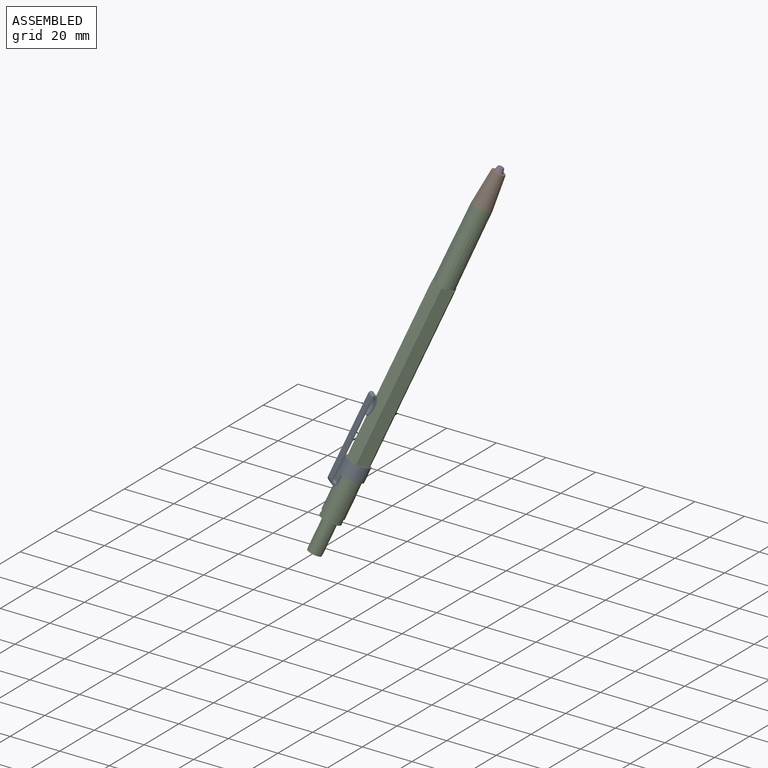
[diagram: assembled view]
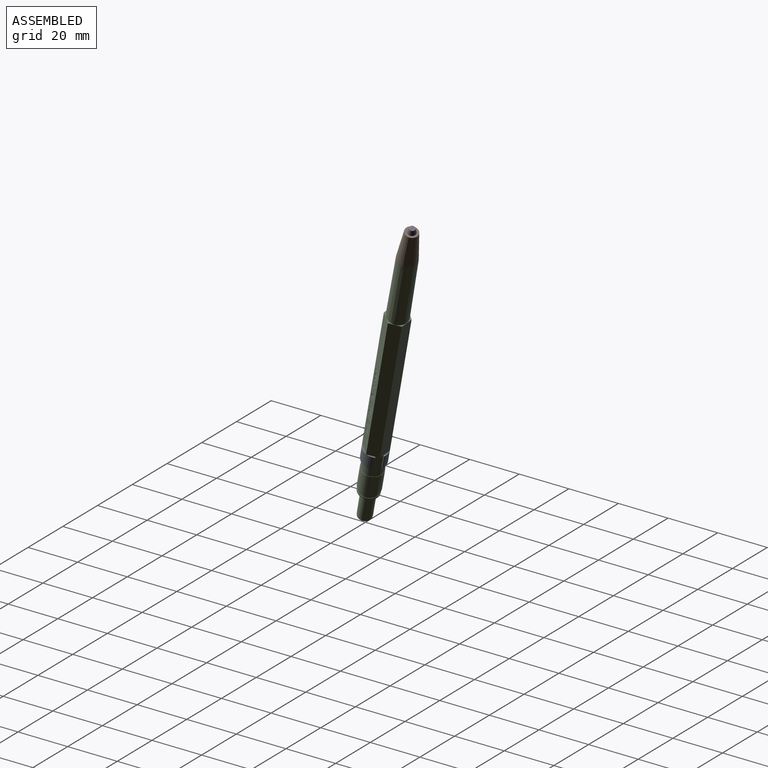
[diagram: assembled view, second angle]
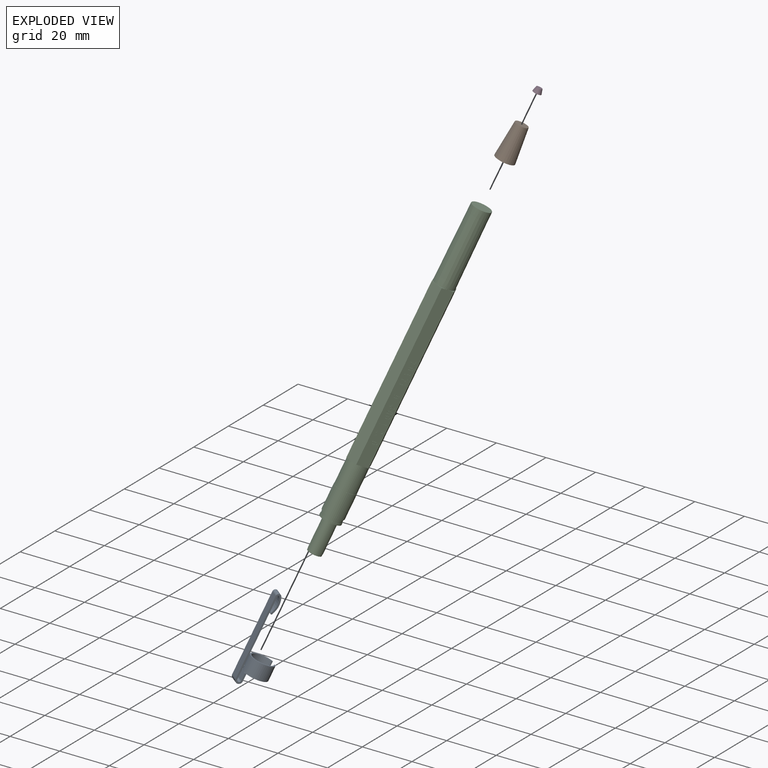
[diagram: exploded view]
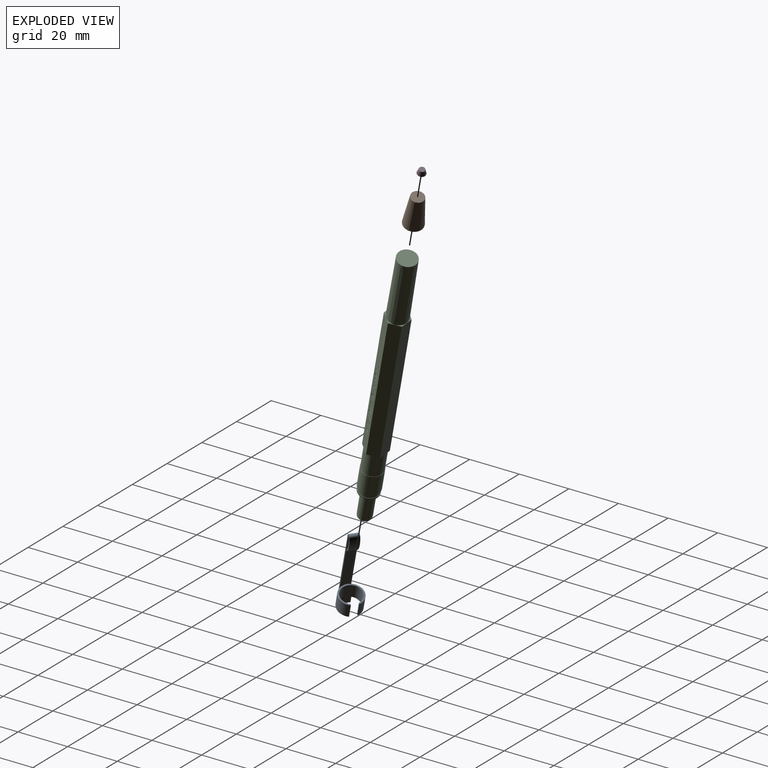
[diagram: exploded view, second angle]
ASSEMBLY  parts=4 mates=7
PART A: 26 faces, bbox 9.4x34.2x11.3 mm
  f0: plane 8.74x4.31mm, normal (0,1,0), area 6.6mm2, adj f1,f2,f6,f7,f8,f12,f25
  f1: cylinder r=0.15mm len=5.84mm, axis (0,1,0), area 1.7mm2, adj f0,f2,f8,f9
  f2: cylinder r=4.71mm len=9.42mm, axis (0,1,0), area 153.2mm2, adj f0,f1,f3,f9,f10,f13
  f3: cylinder r=0.15mm len=5.84mm, axis (0,1,0), area 1.7mm2, adj f2,f4,f9,f10
  f4: plane 5.84x0.33mm, normal (-1,0,0), area 1.9mm2, adj f3,f5,f9,f10
  f5: cylinder r=0.15mm len=5.84mm, axis (0,1,0), area 1mm2, adj f4,f6,f9,f10
  f6: cylinder r=4.1mm len=8.2mm, axis (0,1,0), area 132.1mm2, adj f0,f5,f7,f9,f10,f11
  f7: cylinder r=0.15mm len=5.84mm, axis (0,1,0), area 1mm2, adj f0,f6,f8,f9
  f8: plane 5.84x0.33mm, normal (1,0,0), area 1.9mm2, adj f0,f1,f7,f9
  f9: plane 9.42x9.13mm, normal (0,-1,0), area 15.1mm2, adj f1,f2,f3,f4,f5,f6,f7,f8
  f10: plane 8.74x4.31mm, normal (0,1,0), area 6.6mm2, adj f2,f3,f4,f5,f6,f12,f24
  f11: plane 0.81x0.02mm, normal (0,-1,0), area 0mm2, adj f6,f12
  f12: plane 3.75x2.79mm, normal (0,0,1), area 10.5mm2, adj f0,f10,f11,f23,f24,f25
  f13: plane 3.75x0.42mm, normal (0,-1,0), area 0.6mm2, adj f2,f14,f24,f25
  f14: plane 3.75x2.79mm, normal (0,0,-1), area 10.5mm2, adj f13,f15,f24,f25
  f15: cylinder r=0.75mm len=3.75mm, axis (-1,0,0), area 8.8mm2, adj f14,f16,f24,f25
  f16: plane 31.75x3.75mm, normal (0,0,1), area 119.1mm2, adj f15,f17,f24,f25
  f17: cylinder r=0.36mm len=3.75mm, axis (-1,0,0), area 3.6mm2, adj f16,f18,f24,f25
  f18: cylinder r=6.57mm len=6.27mm, axis (-1,0,0), area 24.5mm2, adj f17,f19,f24,f25
  f19: cylinder r=0.33mm len=3.75mm, axis (-1,0,0), area 4mm2, adj f18,f20,f24,f25
  f20: cylinder r=7.23mm len=6.9mm, axis (-1,0,0), area 27mm2, adj f19,f21,f24,f25
  f21: cylinder r=1.02mm len=3.75mm, axis (-1,0,0), area 10.2mm2, adj f20,f22,f24,f25
  f22: plane 31.75x3.75mm, normal (0,0,-1), area 119.1mm2, adj f21,f23,f24,f25
  f23: cylinder r=1.41mm len=3.75mm, axis (-1,0,0), area 16.5mm2, adj f12,f22,f24,f25
  f24: plane 34.16x2.82mm, normal (1,0,0), area 31mm2, adj f10,f12,f13,f14,f15,f16,f17,f18
  f25: plane 34.16x2.82mm, normal (-1,0,0), area 31mm2, adj f0,f12,f13,f14,f15,f16,f17,f18
PART B: 3 faces, bbox 7.6x7.6x13.5 mm
  f0: cone r=3.82mm half-angle=5.4deg, axis (0,0,1), area 270.2mm2, adj f1,f2
  f1: plane 5.09x5.09mm, normal (0,0,-1), area 20.3mm2, adj f0
  f2: plane 7.63x7.63mm, normal (0,0,1), area 45.8mm2, adj f0
PART C: 204 faces, bbox 9.5x8.5x132.3 mm
  f0: plane 67.56x4.12mm, normal (0.87,0.5,0), area 289.4mm2, adj f4,f9,f10,f11,f15,f19,f33,f34
  f1: plane 5.46x5.46mm, normal (0,0,1), area 1.4mm2, adj f30,f31
  f2: plane 8.1x8.1mm, normal (0,0,1), area 28.1mm2, adj f29,f30
  f3: plane 8.45x8.45mm, normal (0,0,1), area 7.7mm2, adj f26,f27
  f4: plane 3.13x1.81mm, normal (0,0,1), area 0.9mm2, adj f0,f11,f24
  f5: plane 3.13x1.81mm, normal (0,0,1), area 0.9mm2, adj f11,f12,f24
  f6: plane 3.62x1.04mm, normal (0,0,1), area 0.9mm2, adj f12,f13,f24
  f7: plane 3.13x1.81mm, normal (0,0,1), area 0.9mm2, adj f13,f14,f24
  f8: plane 3.13x1.81mm, normal (0,0,1), area 0.9mm2, adj f10,f14,f24
  f9: plane 9.5x8.23mm, normal (0,0,-1), area 7.1mm2, adj f0,f10,f11,f12,f13,f14,f16
  f10: plane 67.56x4.12mm, normal (0.87,-0.5,0), area 321mm2, adj f0,f8,f9,f14,f15,f18
  f11: plane 67.56x4.75mm, normal (0,1,0), area 321mm2, adj f0,f4,f5,f9,f12,f20
  f12: plane 67.56x4.12mm, normal (-0.87,0.5,0), area 321mm2, adj f5,f6,f9,f11,f13,f21
  f13: plane 67.56x4.12mm, normal (-0.87,-0.5,0), area 321mm2, adj f6,f7,f9,f12,f14,f22
  f14: plane 67.56x4.75mm, normal (0,-1,0), area 321mm2, adj f7,f8,f9,f10,f13,f23
  f15: plane 3.62x1.04mm, normal (0,0,1), area 0.9mm2, adj f0,f10,f24
  f16: cone r=4.05mm half-angle=0.5deg, axis (0,0,1), area 734mm2, adj f9,f17
  f17: plane 7.63x7.63mm, normal (0,0,-1), area 45.8mm2, adj f16
  f18: plane 0.5x0.29mm, normal (0,0,-1), area 0mm2, adj f10,f24
  f19: plane 0.5x0.29mm, normal (0,0,-1), area 0mm2, adj f0,f24
  f20: plane 0.57x0.01mm, normal (0,0,-1), area 0mm2, adj f11,f24
  f21: plane 0.5x0.29mm, normal (0,0,-1), area 0mm2, adj f12,f24
  f22: plane 0.5x0.29mm, normal (0,0,-1), area 0mm2, adj f13,f24
  f23: plane 0.57x0.01mm, normal (0,0,-1), area 0mm2, adj f14,f24
  f24: cylinder r=4.12mm len=10.35mm, axis (0,0,-1), area 268.3mm2, adj f4,f5,f6,f7,f8,f15,f18,f19
  f25: plane 8.45x8.45mm, normal (0,0,-1), area 2.6mm2, adj f24,f26
  f26: cylinder r=4.22mm len=9.8mm, axis (0,0,-1), area 260.2mm2, adj f3,f25
  f27: cylinder r=3.92mm len=7.85mm, axis (0,0,-1), area 35mm2, adj f3,f28
  f28: plane 8.1x8.1mm, normal (0,0,-1), area 3.1mm2, adj f27,f29
  f29: cylinder r=4.05mm len=8.1mm, axis (0,0,-1), area 19.1mm2, adj f2,f28
  f30: cylinder r=2.73mm len=11.92mm, axis (0,0,-1), area 204.5mm2, adj f1,f2
  f31: cylinder r=2.65mm len=5.3mm, axis (0,0,-1), area 12.5mm2, adj f1,f32
  f32: plane 5.3x5.3mm, normal (0,0,1), area 22.1mm2, adj f31
  f33: extruded ~0.83x0.78mm, area 0.1mm2, adj f0,f34,f38,f39
  f34: plane 0.75x0.49mm, normal (0,0,-1), area 0.1mm2, adj f0,f33,f35,f39
  f35: extruded ~0.81x0.74mm, area 0.1mm2, adj f0,f34,f36,f39
  f36: extruded ~0.78x0.78mm, area 0.1mm2, adj f0,f35,f37,f39
  f37: plane 0.79x0.51mm, normal (0,0,1), area 0.1mm2, adj f0,f36,f38,f39
  f38: extruded ~0.83x0.73mm, area 0.1mm2, adj f0,f33,f37,f39
  f39: plane 2.24x1.51mm, normal (0.87,0.5,0), area 3.3mm2, adj f33,f34,f35,f36,f37,f38,f40,f41
  f40: plane 1.09x0.69mm, normal (0,0,1), area 0.1mm2, adj f39,f41,f45,f46
  f41: extruded ~0.27x0.21mm, area 0mm2, adj f39,f40,f42,f46
  f42: extruded ~0.28x0.22mm, area 0mm2, adj f39,f41,f43,f46
  f43: plane 1.08x0.68mm, normal (0,0,-1), area 0.1mm2, adj f39,f42,f44,f46
  f44: extruded ~0.28x0.22mm, area 0mm2, adj f39,f43,f45,f46
  f45: extruded ~0.28x0.22mm, area 0mm2, adj f39,f40,f44,f46
  f46: plane 1.49x0.86mm, normal (0.87,0.5,0), area 0.2mm2, adj f40,f41,f42,f43,f44,f45
  f47: plane 0.49x0.09mm, normal (-0.5,0.87,0), area 0mm2, adj f0,f48,f53,f54
  f48: plane 0.26x0.21mm, normal (0,0,-1), area 0mm2, adj f0,f47,f49,f54
  f49: extruded ~0.57x0.49mm, area 0.1mm2, adj f0,f48,f50,f54
  f50: plane 0.24x0.2mm, normal (0,0,1), area 0mm2, adj f0,f49,f51,f54
  f51: extruded ~0.14x0.14mm, area 0mm2, adj f0,f50,f52,f54
  f52: plane 0.09x0.09mm, normal (0.5,-0.87,0), area 0mm2, adj f0,f51,f53,f54
  f53: plane 0.5x0.35mm, normal (0,0,1), area 0.1mm2, adj f0,f47,f52,f54
  f54: plane 0.73x0.49mm, normal (0.87,0.5,0), area 0.4mm2, adj f47,f48,f49,f50,f51,f52,f53
  f55: plane 0.65x0.09mm, normal (-0.5,0.87,0), area 0.1mm2, adj f0,f56,f67,f68
  f56: plane 0.45x0.32mm, normal (0,0,-1), area 0mm2, adj f0,f55,f57,f68
  f57: plane 1.4x0.09mm, normal (0.5,-0.87,0), area 0.1mm2, adj f0,f56,f58,f68
  f58: plane 0.39x0.28mm, normal (-0.01,0.02,1), area 0mm2, adj f0,f57,f59,f68
  f59: extruded ~1.38x0.86mm, area 0.2mm2, adj f0,f58,f60,f68
  f60: extruded ~0.19x0.17mm, area 0mm2, adj f0,f59,f61,f68
  f61: extruded ~0.26x0.21mm, area 0mm2, adj f0,f60,f62,f68
  f62: plane 0.27x0.22mm, normal (0,0,-1), area 0mm2, adj f0,f61,f63,f68
  f63: plane 0.61x0.09mm, normal (0.5,-0.87,0), area 0.1mm2, adj f0,f62,f64,f68
  f64: plane 0.15x0.15mm, normal (0,0,1), area 0mm2, adj f0,f63,f65,f68
  f65: extruded ~0.75x0.67mm, area 0.1mm2, adj f0,f64,f66,f68
  f66: extruded ~0.78x0.62mm, area 0.1mm2, adj f0,f65,f67,f68
  f67: extruded ~1.26x0.79mm, area 0.2mm2, adj f0,f55,f66,f68
  f68: plane 2.19x1.45mm, normal (0.87,0.5,0), area 2.6mm2, adj f55,f56,f57,f58,f59,f60,f61,f62
  f69: plane 2.57x1.54mm, normal (0,0,1), area 0.3mm2, adj f0,f70,f72,f73
  f70: plane 0.41x0.09mm, normal (-0.5,0.87,0), area 0mm2, adj f0,f69,f71,f73
  f71: plane 2.57x1.54mm, normal (0,0,-1), area 0.3mm2, adj f0,f70,f72,f73
  f72: plane 0.41x0.09mm, normal (0.5,-0.87,0), area 0mm2, adj f0,f69,f71,f73
  f73: plane 2.52x1.45mm, normal (0.87,0.5,0), area 1.2mm2, adj f69,f70,f71,f72
  f74: extruded ~0.83x0.78mm, area 0.1mm2, adj f0,f75,f79,f80
  f75: plane 0.75x0.49mm, normal (0,0,-1), area 0.1mm2, adj f0,f74,f76,f80
  f76: extruded ~0.81x0.74mm, area 0.1mm2, adj f0,f75,f77,f80
  f77: extruded ~0.78x0.78mm, area 0.1mm2, adj f0,f76,f78,f80
  f78: plane 0.79x0.51mm, normal (0,0,1), area 0.1mm2, adj f0,f77,f79,f80
  f79: extruded ~0.83x0.73mm, area 0.1mm2, adj f0,f74,f78,f80
  f80: plane 2.24x1.51mm, normal (0.87,0.5,0), area 3.3mm2, adj f74,f75,f76,f77,f78,f79,f81,f82
  f81: plane 1.09x0.69mm, normal (0,0,1), area 0.1mm2, adj f80,f82,f86,f87
  f82: extruded ~0.27x0.21mm, area 0mm2, adj f80,f81,f83,f87
  f83: extruded ~0.28x0.22mm, area 0mm2, adj f80,f82,f84,f87
  f84: plane 1.08x0.68mm, normal (0,0,-1), area 0.1mm2, adj f80,f83,f85,f87
  f85: extruded ~0.28x0.22mm, area 0mm2, adj f80,f84,f86,f87
  f86: extruded ~0.28x0.22mm, area 0mm2, adj f80,f81,f85,f87
  f87: plane 1.49x0.86mm, normal (0.87,0.5,0), area 0.2mm2, adj f81,f82,f83,f84,f85,f86
  f88: extruded ~0.83x0.78mm, area 0.1mm2, adj f0,f89,f93,f94
  f89: plane 0.75x0.49mm, normal (0,0,-1), area 0.1mm2, adj f0,f88,f90,f94
  f90: extruded ~0.81x0.74mm, area 0.1mm2, adj f0,f89,f91,f94
  f91: extruded ~0.78x0.78mm, area 0.1mm2, adj f0,f90,f92,f94
  f92: plane 0.79x0.51mm, normal (0,0,1), area 0.1mm2, adj f0,f91,f93,f94
  f93: extruded ~0.83x0.73mm, area 0.1mm2, adj f0,f88,f92,f94
  f94: plane 2.24x1.51mm, normal (0.87,0.5,0), area 3.3mm2, adj f88,f89,f90,f91,f92,f93,f95,f96
  f95: plane 1.09x0.69mm, normal (0,0,1), area 0.1mm2, adj f94,f96,f100,f101
  f96: extruded ~0.27x0.21mm, area 0mm2, adj f94,f95,f97,f101
  f97: extruded ~0.28x0.22mm, area 0mm2, adj f94,f96,f98,f101
  f98: plane 1.08x0.68mm, normal (0,0,-1), area 0.1mm2, adj f94,f97,f99,f101
  f99: extruded ~0.28x0.22mm, area 0mm2, adj f94,f98,f100,f101
  f100: extruded ~0.28x0.22mm, area 0mm2, adj f94,f95,f99,f101
  f101: plane 1.49x0.86mm, normal (0.87,0.5,0), area 0.2mm2, adj f95,f96,f97,f98,f99,f100
  f102: extruded ~0.45x0.32mm, area 0.1mm2, adj f0,f103,f122,f123
  f103: extruded ~0.61x0.41mm, area 0.1mm2, adj f0,f102,f104,f123
  f104: extruded ~0.77x0.74mm, area 0.1mm2, adj f0,f103,f105,f123
  f105: extruded ~0.79x0.75mm, area 0.1mm2, adj f0,f104,f106,f123
  f106: plane 0.24x0.2mm, normal (0,0,1), area 0mm2, adj f0,f105,f107,f123
  f107: plane 0.7x0.09mm, normal (-0.5,0.87,0), area 0.1mm2, adj f0,f106,f108,f123
  f108: plane 0.42x0.3mm, normal (0,0,-1), area 0mm2, adj f0,f107,f109,f123
  f109: extruded ~0.24x0.19mm, area 0mm2, adj f0,f108,f110,f123
  f110: extruded ~0.32x0.24mm, area 0mm2, adj f0,f109,f111,f123
  f111: plane 0.2x0.17mm, normal (0,0,1), area 0mm2, adj f0,f110,f112,f123
  f112: extruded ~0.35x0.29mm, area 0.1mm2, adj f0,f111,f113,f123
  f113: plane 0.4x0.29mm, normal (0,0,1), area 0mm2, adj f0,f112,f114,f123
  f114: extruded ~0.35x0.25mm, area 0.1mm2, adj f0,f113,f115,f123
  f115: plane 0.17x0.15mm, normal (0,0,1), area 0mm2, adj f0,f114,f116,f123
  f116: extruded ~0.21x0.18mm, area 0mm2, adj f0,f115,f117,f123
  f117: extruded ~0.23x0.19mm, area 0mm2, adj f0,f116,f118,f123
  f118: plane 0.25x0.2mm, normal (0,0,-1), area 0mm2, adj f0,f117,f119,f123
  f119: plane 0.7x0.09mm, normal (0.5,-0.87,0), area 0.1mm2, adj f0,f118,f120,f123
  f120: plane 0.26x0.21mm, normal (0,0,1), area 0mm2, adj f0,f119,f121,f123
  f121: extruded ~0.69x0.6mm, area 0.1mm2, adj f0,f120,f122,f123
  f122: extruded ~0.79x0.64mm, area 0.1mm2, adj f0,f102,f121,f123
  f123: plane 2.24x1.51mm, normal (0.87,0.5,0), area 3mm2, adj f102,f103,f104,f105,f106,f107,f108,f109
  f124: plane 0.66x0.09mm, normal (-0.5,0.87,0), area 0.1mm2, adj f0,f125,f137,f138
  f125: plane 1.41x0.87mm, normal (0,0,-1), area 0.2mm2, adj f0,f124,f126,f138
  f126: extruded ~0.82x0.78mm, area 0.1mm2, adj f0,f125,f127,f138
  f127: extruded ~0.69x0.53mm, area 0.1mm2, adj f0,f126,f128,f138
  f128: plane 0.67x0.09mm, normal (-0.5,0.87,0), area 0.1mm2, adj f0,f127,f129,f138
  f129: extruded ~0.18x0.16mm, area 0mm2, adj f0,f128,f130,f138
  f130: extruded ~0.22x0.18mm, area 0mm2, adj f0,f129,f131,f138
  f131: plane 0.16x0.15mm, normal (0,0,1), area 0mm2, adj f0,f130,f132,f138
  f132: extruded ~0.32x0.18mm, area 0mm2, adj f0,f131,f133,f138
  f133: extruded ~0.55x0.49mm, area 0.1mm2, adj f0,f132,f134,f138
  f134: plane 0.68x0.45mm, normal (0,0,1), area 0.1mm2, adj f0,f133,f135,f138
  f135: extruded ~0.54x0.46mm, area 0.1mm2, adj f0,f134,f136,f138
  f136: extruded ~0.37x0.21mm, area 0mm2, adj f0,f135,f137,f138
  f137: plane 0.19x0.17mm, normal (-0.06,0.1,0.99), area 0mm2, adj f0,f124,f136,f138
  f138: plane 2.11x1.51mm, normal (0.87,0.5,0), area 3.3mm2, adj f124,f125,f126,f127,f128,f129,f130,f131
  f139: plane 0.59x0.4mm, normal (0,0,1), area 0.1mm2, adj f138,f140,f144,f145
  f140: extruded ~0.26x0.21mm, area 0mm2, adj f138,f139,f141,f145
  f141: extruded ~0.21x0.18mm, area 0mm2, adj f138,f140,f142,f145
  f142: plane 0.64x0.42mm, normal (0,0,-1), area 0.1mm2, adj f138,f141,f143,f145
  f143: extruded ~0.21x0.18mm, area 0mm2, adj f138,f142,f144,f145
  f144: extruded ~0.21x0.18mm, area 0mm2, adj f138,f139,f143,f145
  f145: plane 0.91x0.52mm, normal (0.87,0.5,0), area 0.1mm2, adj f139,f140,f141,f142,f143,f144
  f146: plane 0.73x0.09mm, normal (-0.5,0.87,0), area 0.1mm2, adj f0,f147,f149,f150
  f147: plane 0.38x0.28mm, normal (0,0,-1), area 0mm2, adj f0,f146,f148,f150
  f148: plane 0.73x0.09mm, normal (0.5,-0.87,0), area 0.1mm2, adj f0,f147,f149,f150
  f149: plane 0.38x0.28mm, normal (0,0,1), area 0mm2, adj f0,f146,f148,f150
  f150: plane 0.73x0.33mm, normal (0.87,0.5,0), area 0.3mm2, adj f146,f147,f148,f149
  f151: plane 0.73x0.09mm, normal (-0.5,0.87,0), area 0.1mm2, adj f0,f152,f154,f155
  f152: plane 1.84x1.12mm, normal (0,0,-1), area 0.2mm2, adj f0,f151,f153,f155
  f153: plane 0.73x0.09mm, normal (0.5,-0.87,0), area 0.1mm2, adj f0,f152,f154,f155
  f154: plane 1.84x1.12mm, normal (0,0,1), area 0.2mm2, adj f0,f151,f153,f155
  f155: plane 1.79x1.03mm, normal (0.87,0.5,0), area 1.5mm2, adj f151,f152,f153,f154
  f156: plane 0.7x0.09mm, normal (-0.5,0.87,0), area 0.1mm2, adj f0,f157,f163,f164
  f157: plane 0.29x0.23mm, normal (0,0,-1), area 0mm2, adj f0,f156,f158,f164
  f158: extruded ~0.35x0.32mm, area 0.1mm2, adj f0,f157,f159,f164
  f159: plane 0.7x0.46mm, normal (0,0,-1), area 0.1mm2, adj f0,f158,f160,f164
  f160: extruded ~0.5x0.35mm, area 0.1mm2, adj f0,f159,f161,f164
  f161: plane 0.76x0.5mm, normal (0,0,-1), area 0.1mm2, adj f0,f160,f162,f164
  f162: plane 0.7x0.09mm, normal (0.5,-0.87,0), area 0.1mm2, adj f0,f161,f163,f164
  f163: plane 1.84x1.12mm, normal (0,0,1), area 0.2mm2, adj f0,f156,f162,f164
  f164: plane 1.81x1.05mm, normal (0.87,0.5,0), area 1.7mm2, adj f156,f157,f158,f159,f160,f161,f162,f163
  f165: plane 0.7x0.09mm, normal (-0.5,0.87,0), area 0.1mm2, adj f0,f166,f179,f180
  f166: plane 0.33x0.25mm, normal (0,0,-1), area 0mm2, adj f0,f165,f167,f180
  f167: plane 0.17x0.09mm, normal (-0.5,0.87,0), area 0mm2, adj f0,f166,f168,f180
  f168: plane 0.38x0.28mm, normal (0,0,-1), area 0mm2, adj f0,f167,f169,f180
  f169: plane 0.17x0.09mm, normal (0.5,-0.87,0), area 0mm2, adj f0,f168,f170,f180
  f170: plane 0.95x0.61mm, normal (0,0,-1), area 0.1mm2, adj f0,f169,f171,f180
  f171: extruded ~0.23x0.2mm, area 0mm2, adj f0,f170,f172,f180
  f172: plane 0.38x0.28mm, normal (0,0,-1), area 0mm2, adj f0,f171,f173,f180
  f173: plane 0.31x0.09mm, normal (0.5,-0.87,0), area 0mm2, adj f0,f172,f174,f180
  f174: extruded ~0.61x0.59mm, area 0.1mm2, adj f0,f173,f175,f180
  f175: plane 0.9x0.58mm, normal (0,0,1), area 0.1mm2, adj f0,f174,f176,f180
  f176: plane 0.12x0.09mm, normal (0.5,-0.87,0), area 0mm2, adj f0,f175,f177,f180
  f177: plane 0.38x0.28mm, normal (0,0,1), area 0mm2, adj f0,f176,f178,f180
  f178: plane 0.12x0.09mm, normal (-0.5,0.87,0), area 0mm2, adj f0,f177,f179,f180
  f179: plane 0.33x0.25mm, normal (0,0,1), area 0mm2, adj f0,f165,f178,f180
  f180: plane 2.01x1.16mm, normal (0.87,0.5,0), area 1.8mm2, adj f165,f166,f167,f168,f169,f170,f171,f172
  f181: plane 0.41x0.3mm, normal (0,0,-1), area 0mm2, adj f0,f182,f186,f187
  f182: extruded ~1x0.79mm, area 0.2mm2, adj f0,f181,f183,f187
  f183: extruded ~1x0.76mm, area 0.2mm2, adj f0,f182,f184,f187
  f184: plane 0.41x0.3mm, normal (0,0,1), area 0mm2, adj f0,f183,f185,f187
  f185: extruded ~1x0.76mm, area 0.2mm2, adj f0,f184,f186,f187
  f186: extruded ~1x0.79mm, area 0.2mm2, adj f0,f181,f185,f187
  f187: plane 2.27x1.54mm, normal (0.87,0.5,0), area 3.5mm2, adj f181,f182,f183,f184,f185,f186,f188,f189
  f188: plane 1.04x0.66mm, normal (0,0,1), area 0.1mm2, adj f187,f189,f193,f194
  f189: extruded ~0.32x0.24mm, area 0mm2, adj f187,f188,f190,f194
  f190: extruded ~0.3x0.23mm, area 0mm2, adj f187,f189,f191,f194
  f191: plane 1.05x0.67mm, normal (0,0,-1), area 0.1mm2, adj f187,f190,f192,f194
  f192: extruded ~0.26x0.21mm, area 0mm2, adj f187,f191,f193,f194
  f193: extruded ~0.26x0.21mm, area 0mm2, adj f187,f188,f192,f194
  f194: plane 1.46x0.84mm, normal (0.87,0.5,0), area 0.1mm2, adj f188,f189,f190,f191,f192,f193
  f195: plane 0.7x0.09mm, normal (-0.5,0.87,0), area 0.1mm2, adj f0,f196,f202,f203
  f196: plane 0.29x0.23mm, normal (0,0,-1), area 0mm2, adj f0,f195,f197,f203
  f197: extruded ~0.35x0.32mm, area 0.1mm2, adj f0,f196,f198,f203
  f198: plane 0.7x0.46mm, normal (0,0,-1), area 0.1mm2, adj f0,f197,f199,f203
  f199: extruded ~0.5x0.35mm, area 0.1mm2, adj f0,f198,f200,f203
  f200: plane 0.76x0.5mm, normal (0,0,-1), area 0.1mm2, adj f0,f199,f201,f203
  f201: plane 0.7x0.09mm, normal (0.5,-0.87,0), area 0.1mm2, adj f0,f200,f202,f203
  f202: plane 1.84x1.12mm, normal (0,0,1), area 0.2mm2, adj f0,f195,f201,f203
  f203: plane 1.81x1.05mm, normal (0.87,0.5,0), area 1.7mm2, adj f195,f196,f197,f198,f199,f200,f201,f202
PART D: 3 faces, bbox 3.3x3.3x1.9 mm
  f0: cone r=1.67mm half-angle=15deg, axis (0,0,1), area 17.6mm2, adj f1,f2
  f1: plane 2.3x2.3mm, normal (0,0,-1), area 4.2mm2, adj f0
  f2: plane 3.33x3.33mm, normal (0,0,1), area 8.7mm2, adj f0
PLACE A rot(axis=(-0.93,0.32,-0.19),118.8deg) t=(-14.71,23.24,105.78)mm
PLACE B rot(axis=(0.97,0.17,-0.17),163.9deg) t=(5.91,47.22,172.01)mm
PLACE C rot(axis=(0.99,-0.06,-0.14),159.7deg) t=(5.91,47.22,172.01)mm
PLACE D rot(axis=(0.97,0.17,-0.17),163.9deg) t=(5.91,47.22,172.01)mm
MATE cylindrical B.f0 <-> C.f16  axis (-0.28,-0.33,-0.9) through (14.26,56.92,198.81)mm
MATE parallel A.f25 <-> C.f13  axis (-0.79,0.61,0.03) through (-15.66,24.44,120.71)mm
MATE planar A.f9 <-> C.f7  axis (0.28,0.33,0.9) through (-13.35,24.77,111.27)mm
MATE cylindrical A.f2 <-> C.f16  axis (-0.28,-0.33,-0.9) through (-14.71,23.24,105.78)mm
MATE planar B.f0 <-> C.f16  axis (-0.28,-0.33,-0.9) through (14.26,56.92,198.81)mm
MATE planar B.f0 <-> D.f0  axis (0.28,0.33,0.9) through (18.04,61.32,210.96)mm
MATE cylindrical D.f0 <-> B.f0  axis (-0.28,-0.33,-0.9) through (18.04,61.32,210.96)mm
